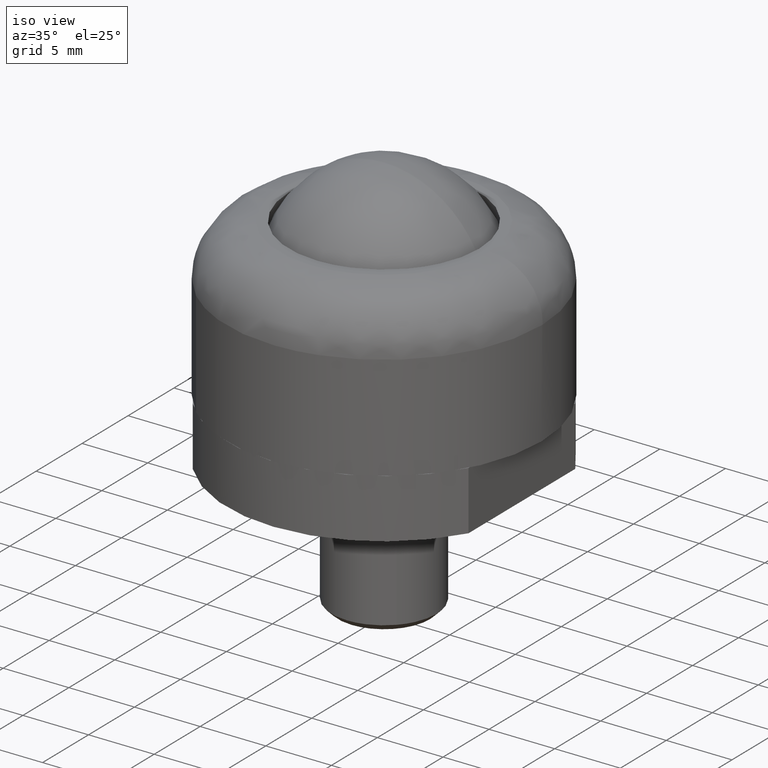
[diagram: clean part render]
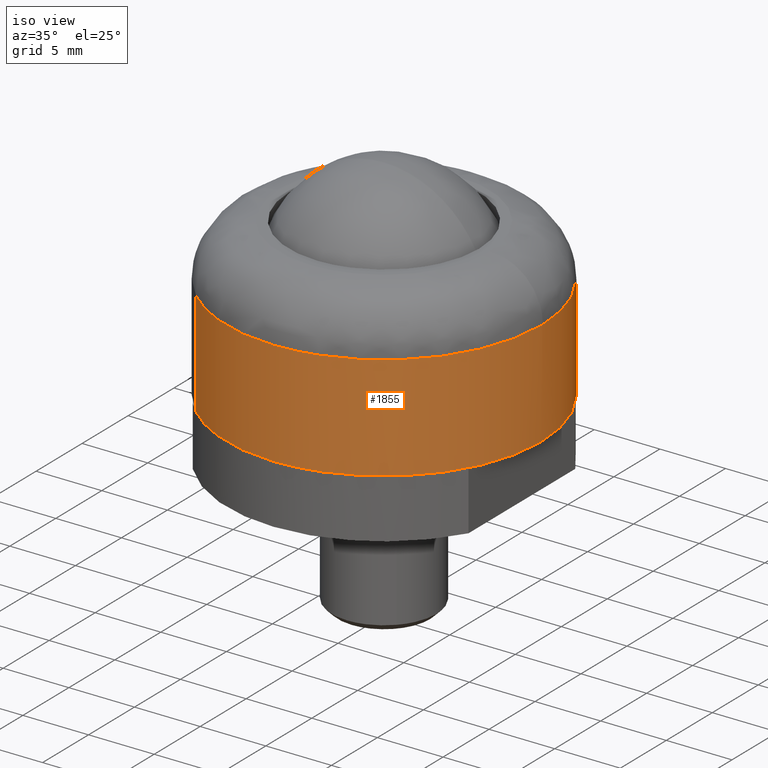
[diagram: tour spotlight — one face highlighted and labeled with its STEP entity id]
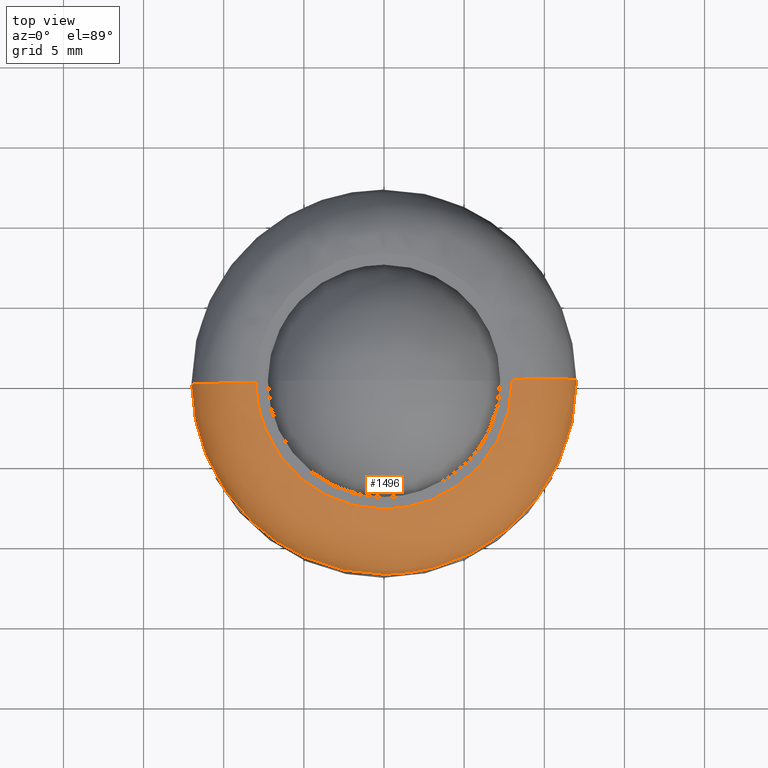
[diagram: tour spotlight — one face highlighted and labeled with its STEP entity id]
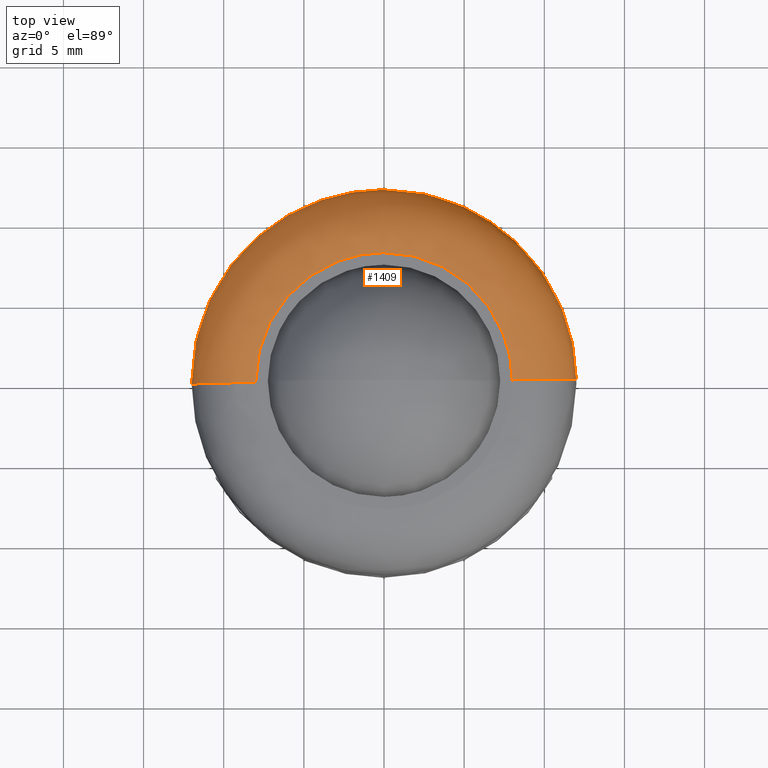
[diagram: tour spotlight — one face highlighted and labeled with its STEP entity id]
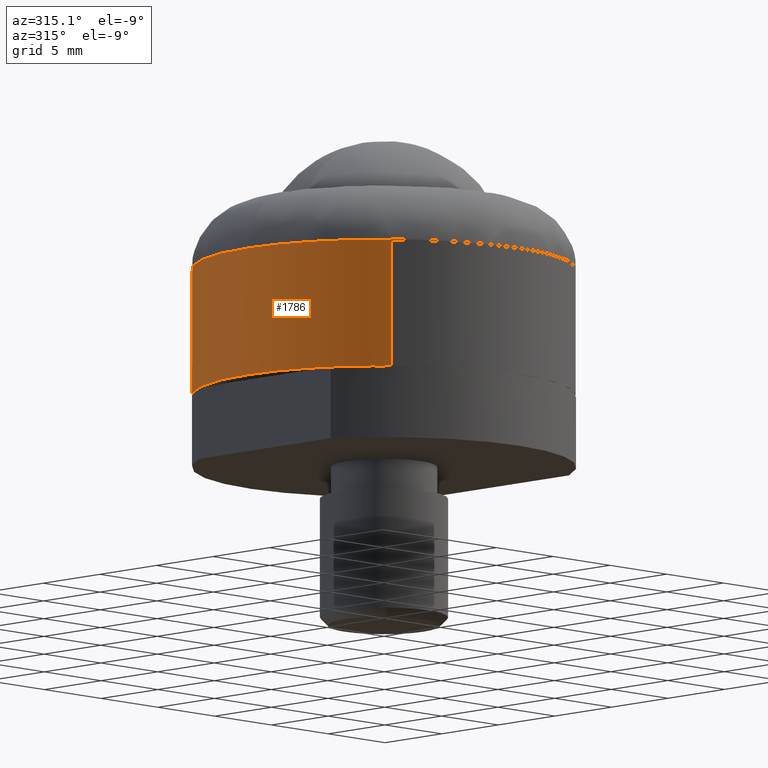
[diagram: tour spotlight — one face highlighted and labeled with its STEP entity id]
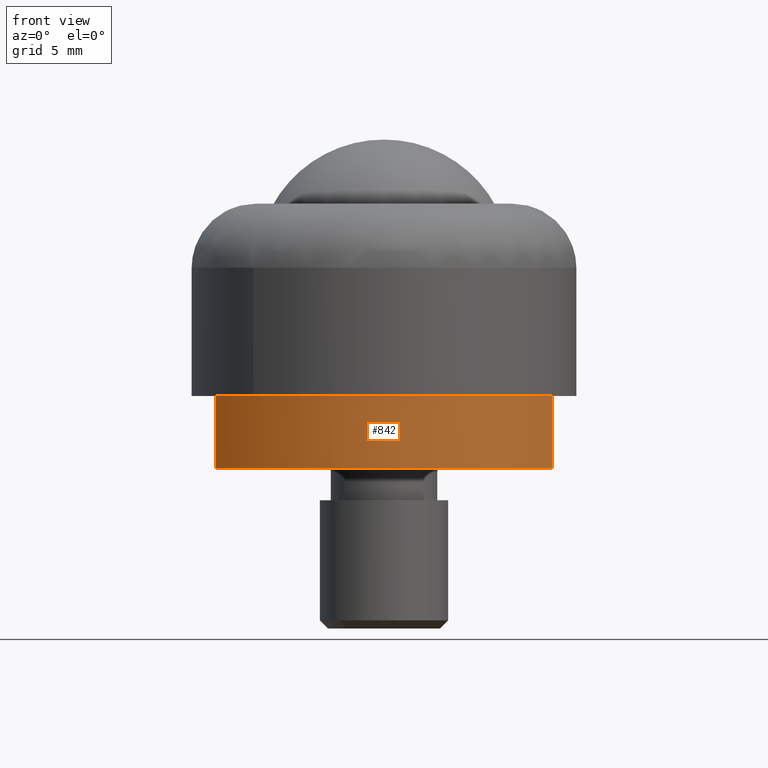
[diagram: tour spotlight — one face highlighted and labeled with its STEP entity id]
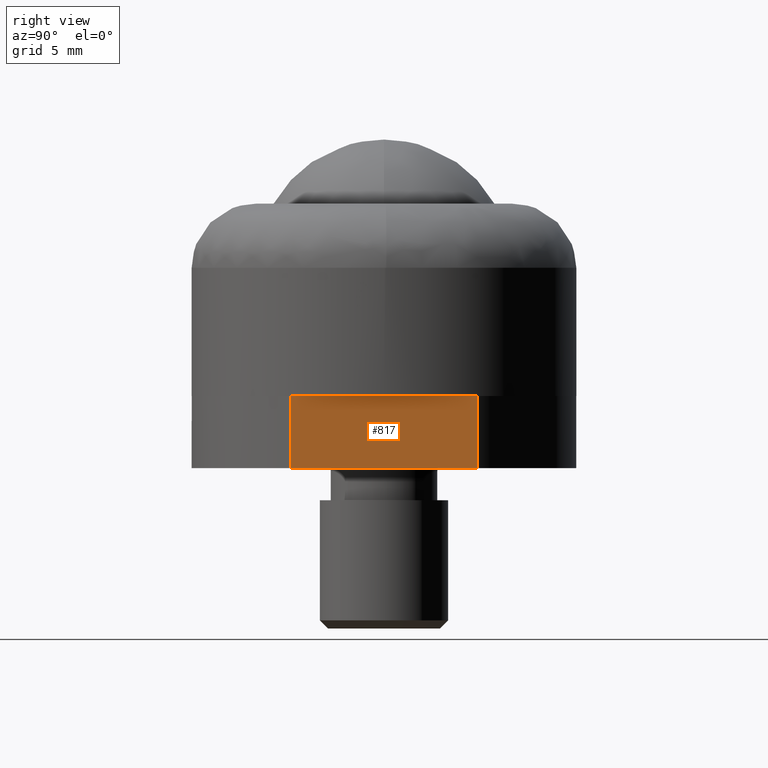
[diagram: tour spotlight — one face highlighted and labeled with its STEP entity id]
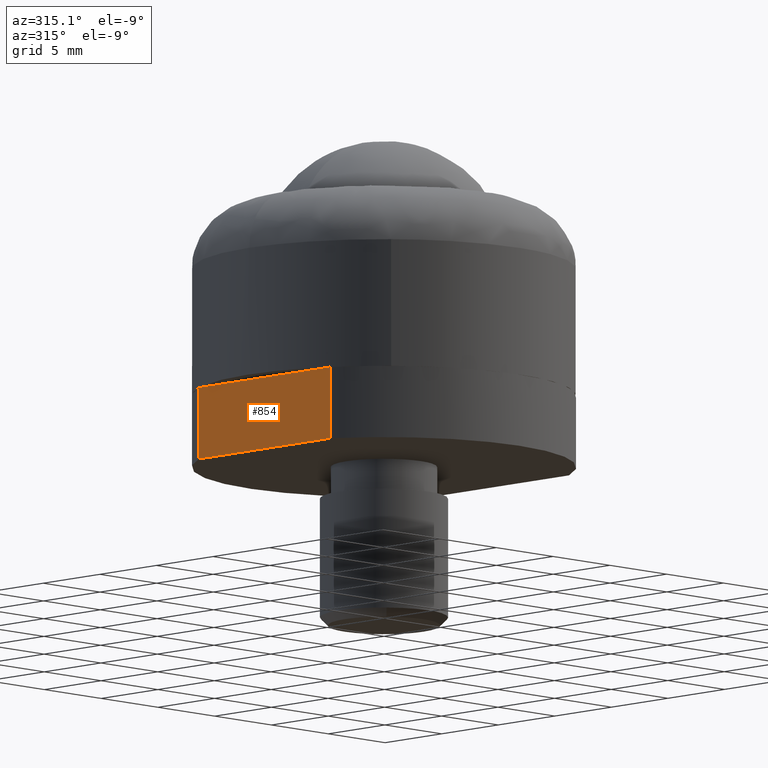
[diagram: tour spotlight — one face highlighted and labeled with its STEP entity id]
A machine part: a face-by-face anatomy tour. The part has 29 B-rep faces; the first image is the clean iso view, then the 7 largest visible faces are spotlighted one at a time (largest first), each with its STEP entity span.

Face 1 — iso view, entity #1855. In plain terms, the highlighted face is a freeform B-spline surface patch.
Definition (entity closure, byte-faithful):
#1344=CARTESIAN_POINT('',(11.999052530445731,0.150792478605389,8.000000000027146));
#1345=VERTEX_POINT('',#1344);
#1361=CARTESIAN_POINT('',(8.150221700225481,8.807603887390350,8.000000000022855));
#1362=VERTEX_POINT('',#1361);
#1363=CARTESIAN_POINT('',(8.150221700225481,8.807603887390350,8.000000000022855));
#1364=CARTESIAN_POINT('',(8.671482128028611,8.325339009844845,8.000000000023453));
#1365=CARTESIAN_POINT('',(9.474229027210596,7.437816710629212,8.000000000024320));
#1366=CARTESIAN_POINT('',(10.416196169492739,6.019854363783121,8.000000000025432));
#1367=CARTESIAN_POINT('',(11.017441017838140,4.814622836116429,8.000000000026040));
#1368=CARTESIAN_POINT('',(11.485054691502249,3.552992729651795,8.000000000026601));
#1369=CARTESIAN_POINT('',(11.869032063066671,2.051427471956650,8.000000000027027));
#1370=CARTESIAN_POINT('',(11.990193050754140,0.860871659160365,8.000000000027097));
#1371=CARTESIAN_POINT('',(11.999052530445731,0.150792478605389,8.000000000027146));
#1372=B_SPLINE_CURVE_WITH_KNOTS('',3,(#1363,#1364,#1365,#1366,#1367,#1368,#1369,#1370,#1371),.UNSPECIFIED.,.F.,.U.,(4,1,1,1,1,1,4),(7.575803E-009,2.130394669935055,3.576027367319011,5.097726640682389,6.162926198179520,7.608558895563734,9.738953557923326),.UNSPECIFIED.);
#1373=EDGE_CURVE('',#1362,#1345,#1372,.T.);
#1439=CARTESIAN_POINT('',(-8.150221700225480,-8.807603887390352,8.000000000022855));
#1440=VERTEX_POINT('',#1439);
#1452=CARTESIAN_POINT('',(0.075388707493014,-11.999763186945930,8.000000000013573));
#1453=VERTEX_POINT('',#1452);
#1454=CARTESIAN_POINT('',(0.075388707493014,-11.999763186945930,8.000000000013573));
#1455=CARTESIAN_POINT('',(-0.654006143706912,-12.004420671418620,8.000000000014389));
#1456=CARTESIAN_POINT('',(-2.090061988687813,-11.882100078422290,8.000000000016041));
#1457=CARTESIAN_POINT('',(-3.959715974021001,-11.376134511166679,8.000000000018083));
#1458=CARTESIAN_POINT('',(-5.578183753002072,-10.664351549641220,8.000000000019991));
#1459=CARTESIAN_POINT('',(-6.928254911870231,-9.842816120790843,8.000000000021464));
#1460=CARTESIAN_POINT('',(-7.770299474572687,-9.159189611917725,8.000000000022439));
#1461=CARTESIAN_POINT('',(-8.150221700225480,-8.807603887390352,8.000000000022855));
#1462=B_SPLINE_CURVE_WITH_KNOTS('',3,(#1454,#1455,#1456,#1457,#1458,#1459,#1460,#1461),.UNSPECIFIED.,.F.,.U.,(4,1,1,1,1,4),(6.516924E-009,2.188218474336869,4.305852175168417,5.788186343362224,7.482296806935814,9.035224458819268),.UNSPECIFIED.);
#1463=EDGE_CURVE('',#1453,#1440,#1462,.T.);
#1465=CARTESIAN_POINT('',(12.0,0.0,8.0));
#1466=VERTEX_POINT('',#1465);
#1467=CARTESIAN_POINT('',(12.0,0.0,8.0));
#1468=CARTESIAN_POINT('',(12.000011407299761,-0.464460527943945,7.999999999999996));
#1469=CARTESIAN_POINT('',(11.944574154417831,-1.417829200938180,8.000000000000075));
#1470=CARTESIAN_POINT('',(11.646717356755239,-3.081269613846734,8.000000000000437));
#1471=CARTESIAN_POINT('',(11.010339249505590,-4.939191326549644,8.000000000001135));
#1472=CARTESIAN_POINT('',(10.021730813442479,-6.692677011159688,8.000000000002276));
#1473=CARTESIAN_POINT('',(8.984140381373127,-7.996191150020853,8.000000000003505));
#1474=CARTESIAN_POINT('',(7.890624607577387,-9.083254134527977,8.000000000004560));
#1475=CARTESIAN_POINT('',(6.687158894716961,-10.011801255502739,8.000000000006482));
#1476=CARTESIAN_POINT('',(5.409165312356457,-10.737705629668360,8.000000000007132));
#1477=CARTESIAN_POINT('',(4.129871356913888,-11.293162639923990,8.000000000009255));
#1478=CARTESIAN_POINT('',(2.421013081692573,-11.821149636838200,8.000000000010548));
#1479=CARTESIAN_POINT('',(0.979871315033733,-11.994268001263301,8.000000000012932));
#1480=CARTESIAN_POINT('',(0.075388707493014,-11.999763186945930,8.000000000013573));
#1481=B_SPLINE_CURVE_WITH_KNOTS('',3,(#1467,#1468,#1469,#1470,#1471,#1472,#1473,#1474,#1475,#1476,#1477,#1478,#1479,#1480),.UNSPECIFIED.,.F.,.U.,(4,1,1,1,1,1,1,1,1,1,1,4),(0.000000026535375,1.393382668926854,2.860122857525321,5.060234315766738,7.260335007608569,8.873749474419734,10.047110052082751,11.880536035670460,13.420614786120391,14.447330572144489,16.060747338141759,18.774195934235760),.UNSPECIFIED.);
#1482=EDGE_CURVE('',#1466,#1453,#1481,.T.);
#1484=CARTESIAN_POINT('',(11.999052530445731,0.150792478605389,8.000000000027146));
#1485=CARTESIAN_POINT('',(12.0,0.0,8.0));
#1486=QUASI_UNIFORM_CURVE('',1,(#1484,#1485),.UNSPECIFIED.,.F.,.U.);
#1487=EDGE_CURVE('',#1345,#1466,#1486,.T.);
#1727=CARTESIAN_POINT('',(8.150221724179847,8.807603865223889,1.942890E-016));
#1728=VERTEX_POINT('',#1727);
#1729=CARTESIAN_POINT('',(8.150221700225481,8.807603887390350,8.000000000022855));
#1730=CARTESIAN_POINT('',(8.150221724179847,8.807603865223889,1.942890E-016));
#1731=QUASI_UNIFORM_CURVE('',1,(#1729,#1730),.UNSPECIFIED.,.F.,.U.);
#1732=EDGE_CURVE('',#1362,#1728,#1731,.T.);
#1766=CARTESIAN_POINT('',(-8.150221724179847,-8.807603865223891,1.942890E-016));
#1767=VERTEX_POINT('',#1766);
#1779=CARTESIAN_POINT('',(-8.150221700225480,-8.807603887390352,8.000000000022855));
#1780=CARTESIAN_POINT('',(-8.150221724179847,-8.807603865223891,1.942890E-016));
#1781=QUASI_UNIFORM_CURVE('',1,(#1779,#1780),.UNSPECIFIED.,.F.,.U.);
#1782=EDGE_CURVE('',#1440,#1767,#1781,.T.);
#1787=CARTESIAN_POINT('',(8.150221714000264,8.807603874643686,8.200000000027826));
#1788=CARTESIAN_POINT('',(16.957825588643956,0.657382160643422,8.200000000027826));
#1789=CARTESIAN_POINT('',(8.807603874643686,-8.150221714000264,8.200000000027826));
#1790=CARTESIAN_POINT('',(0.657382160643422,-16.957825588643956,8.200000000027826));
#1791=CARTESIAN_POINT('',(-8.150221714000264,-8.807603874643686,8.200000000027826));
#1792=CARTESIAN_POINT('',(8.150221714000264,8.807603874643686,-0.205000000000696));
#1793=CARTESIAN_POINT('',(16.957825588643956,0.657382160643422,-0.205000000000696));
#1794=CARTESIAN_POINT('',(8.807603874643686,-8.150221714000264,-0.205000000000696));
#1795=CARTESIAN_POINT('',(0.657382160643422,-16.957825588643956,-0.205000000000696));
#1796=CARTESIAN_POINT('',(-8.150221714000264,-8.807603874643686,-0.205000000000696));
#1804=(BOUNDED_SURFACE()B_SPLINE_SURFACE(2,1,((#1787,#1792),(#1788,#1793),(#1789,#1794),(#1790,#1795),(#1791,#1796)),.UNSPECIFIED.,.F.,.F.,.U.)B_SPLINE_SURFACE_WITH_KNOTS((3,2,3),(2,2),(0.0,19.882250993908560,39.764501987817113),(0.0,8.405000000028522),.UNSPECIFIED.)GEOMETRIC_REPRESENTATION_ITEM()RATIONAL_B_SPLINE_SURFACE(((1.0,1.0),(0.707106781186548,0.707106781186548),(1.0,1.0),(0.707106781186548,0.707106781186548),(1.0,1.0)))REPRESENTATION_ITEM('')SURFACE());
#1805=ORIENTED_EDGE('',*,*,#1463,.T.);
#1806=ORIENTED_EDGE('',*,*,#1782,.T.);
#1807=CARTESIAN_POINT('',(0.0,-12.0,0.0));
#1808=VERTEX_POINT('',#1807);
#1809=CARTESIAN_POINT('',(0.0,-12.0,0.0));
#1810=CARTESIAN_POINT('',(-0.699986530723798,-12.000048687467100,1.668663E-017));
#1811=CARTESIAN_POINT('',(-2.169956736284453,-11.871060751411260,5.172851E-017));
#1812=CARTESIAN_POINT('',(-3.931507148013010,-11.381205203783070,9.372122E-017));
#1813=CARTESIAN_POINT('',(-5.387223708976368,-10.746255450045441,1.284233E-016));
#1814=CARTESIAN_POINT('',(-6.710650589090807,-10.000230601089280,1.599718E-016));
#1815=CARTESIAN_POINT('',(-7.636498571738492,-9.283078268364074,1.820426E-016));
#1816=CARTESIAN_POINT('',(-8.150221724179847,-8.807603865223891,1.942890E-016));
#1817=B_SPLINE_CURVE_WITH_KNOTS('',3,(#1809,#1810,#1811,#1812,#1813,#1814,#1815,#1816),.UNSPECIFIED.,.F.,.U.,(4,1,1,1,1,4),(6.701729E-009,2.099961025915477,4.409927718938732,5.459893613363427,6.859873945475978,8.959834964689954),.UNSPECIFIED.);
#1818=EDGE_CURVE('',#1808,#1767,#1817,.T.);
#1819=ORIENTED_EDGE('',*,*,#1818,.F.);
#1820=CARTESIAN_POINT('',(12.0,0.0,0.0));
#1821=VERTEX_POINT('',#1820);
#1822=CARTESIAN_POINT('',(12.0,0.0,0.0));
#1823=CARTESIAN_POINT('',(12.000118696536729,-0.809947506403297,0.0));
#1824=CARTESIAN_POINT('',(11.857799878374530,-2.208889735110283,0.0));
#1825=CARTESIAN_POINT('',(11.341157066411901,-4.032095999804342,0.0));
#1826=CARTESIAN_POINT('',(10.604195405997430,-5.722720429505489,0.0));
#1827=CARTESIAN_POINT('',(9.649912053248482,-7.219524891285317,0.0));
#1828=CARTESIAN_POINT('',(8.374692443749082,-8.652723455516114,0.0));
#1829=CARTESIAN_POINT('',(6.961738219772919,-9.841678162026874,0.0));
#1830=CARTESIAN_POINT('',(5.222767592192676,-10.869545214201899,0.0));
#1831=CARTESIAN_POINT('',(3.471888160648204,-11.532585088383231,0.0));
#1832=CARTESIAN_POINT('',(1.718047782751911,-11.915095543464240,0.0));
#1833=CARTESIAN_POINT('',(0.613593313000995,-12.000035211830840,0.0));
#1834=CARTESIAN_POINT('',(0.0,-12.0,0.0));
#1835=B_SPLINE_CURVE_WITH_KNOTS('',3,(#1822,#1823,#1824,#1825,#1826,#1827,#1828,#1829,#1830,#1831,#1832,#1833,#1834),.UNSPECIFIED.,.F.,.U.,(4,1,1,1,1,1,1,1,1,1,4),(0.000000027044333,2.429819822833615,4.196976010864429,5.669606577657952,7.952183941740296,9.498407437983197,11.412822423937021,13.474506509912191,15.536185248831950,17.008805841592839,18.849585491021241),.UNSPECIFIED.);
#1836=EDGE_CURVE('',#1821,#1808,#1835,.T.);
#1837=ORIENTED_EDGE('',*,*,#1836,.F.);
#1838=CARTESIAN_POINT('',(8.150221724179847,8.807603865223889,1.942890E-016));
#1839=CARTESIAN_POINT('',(8.698469125836015,8.300390692385957,1.831003E-016));
#1840=CARTESIAN_POINT('',(9.561602847345801,7.337205661104610,1.618532E-016));
#1841=CARTESIAN_POINT('',(10.592122048466679,5.728828400222984,1.263736E-016));
#1842=CARTESIAN_POINT('',(11.326963833398480,4.104988887561123,9.055293E-017));
#1843=CARTESIAN_POINT('',(11.865205340940900,2.163347439063184,4.772180E-017));
#1844=CARTESIAN_POINT('',(12.000092759836020,0.772643339845406,1.704392E-017));
#1845=CARTESIAN_POINT('',(12.0,0.0,0.0));
#1846=B_SPLINE_CURVE_WITH_KNOTS('',3,(#1838,#1839,#1840,#1841,#1842,#1843,#1844,#1845),.UNSPECIFIED.,.F.,.U.,(4,1,1,1,1,4),(7.551140E-009,2.240645708477408,3.863190169631452,5.717504333196771,7.571841136143569,9.889750742216009),.UNSPECIFIED.);
#1847=EDGE_CURVE('',#1728,#1821,#1846,.T.);
#1848=ORIENTED_EDGE('',*,*,#1847,.F.);
#1849=ORIENTED_EDGE('',*,*,#1732,.F.);
#1850=ORIENTED_EDGE('',*,*,#1373,.T.);
#1851=ORIENTED_EDGE('',*,*,#1487,.T.);
#1852=ORIENTED_EDGE('',*,*,#1482,.T.);
#1853=EDGE_LOOP('',(#1805,#1806,#1819,#1837,#1848,#1849,#1850,#1851,#1852));
#1854=FACE_OUTER_BOUND('',#1853,.T.);
#1855=ADVANCED_FACE('',(#1854),#1804,.T.);

Face 2 — top view, entity #1496. In plain terms, the highlighted face is a freeform B-spline surface patch.
Definition (entity closure, byte-faithful):
#1086=CARTESIAN_POINT('',(-7.999368353823391,-0.100528319104922,12.0));
#1087=VERTEX_POINT('',#1086);
#1095=CARTESIAN_POINT('',(0.050258764031957,-7.999842126982739,12.0));
#1096=VERTEX_POINT('',#1095);
#1097=CARTESIAN_POINT('',(0.050258764031957,-7.999842126982739,12.0));
#1098=CARTESIAN_POINT('',(-0.291969692002958,-8.002001624722414,12.0));
#1099=CARTESIAN_POINT('',(-1.009308690898889,-7.960417831828395,12.000000000000011));
#1100=CARTESIAN_POINT('',(-2.147877280366271,-7.738725314529022,11.999999999999950));
#1101=CARTESIAN_POINT('',(-3.240442216491117,-7.345918888468682,12.000000000000160));
#1102=CARTESIAN_POINT('',(-4.291294910956784,-6.782969535053945,11.999999999999790));
#1103=CARTESIAN_POINT('',(-5.319696521452464,-6.029499938841547,12.000000000000171));
#1104=CARTESIAN_POINT('',(-6.237553441284248,-5.072000818602808,12.000000000000030));
#1105=CARTESIAN_POINT('',(-6.895158595428486,-4.096394659710724,11.999999999999940));
#1106=CARTESIAN_POINT('',(-7.376359571363047,-3.151259520485609,12.000000000000190));
#1107=CARTESIAN_POINT('',(-7.680921348950090,-2.305472377029266,11.999999999999950));
#1108=CARTESIAN_POINT('',(-7.926310511984541,-1.240471974038401,12.0));
#1109=CARTESIAN_POINT('',(-7.993671507442953,-0.556807913680777,12.000000000000011));
#1110=CARTESIAN_POINT('',(-7.999368353823391,-0.100528319104922,12.0));
#1111=B_SPLINE_CURVE_WITH_KNOTS('',3,(#1097,#1098,#1099,#1100,#1101,#1102,#1103,#1104,#1105,#1106,#1107,#1108,#1109,#1110),.UNSPECIFIED.,.F.,.U.,(4,1,1,1,1,1,1,1,1,1,1,4),(0.000000032343642,1.026706891044071,2.151201481715830,3.471268425500442,4.497982534330774,5.720274910603725,7.284759213213086,8.458154736016571,9.240414605485842,10.462700141200481,11.147179417200739,12.516118221549579),.UNSPECIFIED.);
#1112=EDGE_CURVE('',#1096,#1087,#1111,.T.);
#1114=CARTESIAN_POINT('',(8.0,0.0,12.0));
#1115=VERTEX_POINT('',#1114);
#1116=CARTESIAN_POINT('',(8.0,0.0,12.0));
#1117=CARTESIAN_POINT('',(8.000007600070280,-0.342235364035424,12.0));
#1118=CARTESIAN_POINT('',(7.952872440890642,-1.075597087077423,12.000000000000011));
#1119=CARTESIAN_POINT('',(7.691091632250863,-2.356401361394689,11.999999999999959));
#1120=CARTESIAN_POINT('',(7.171812730929088,-3.649187877849604,12.000000000000030));
#1121=CARTESIAN_POINT('',(6.450150170503080,-4.778970361939138,11.999999999999959));
#1122=CARTESIAN_POINT('',(5.660638851825850,-5.693878554737453,12.000000000000011));
#1123=CARTESIAN_POINT('',(4.831300056676323,-6.409815986532683,12.000000000000030));
#1124=CARTESIAN_POINT('',(3.897673977444101,-7.010298109555170,11.999999999999940));
#1125=CARTESIAN_POINT('',(2.807380275182842,-7.532101224692839,12.000000000000080));
#1126=CARTESIAN_POINT('',(1.500126976867151,-7.905486006509801,12.0));
#1127=CARTESIAN_POINT('',(0.506562304105791,-7.997003475008324,11.999999999999920));
#1128=CARTESIAN_POINT('',(0.050258764031957,-7.999842126982739,12.0));
#1129=B_SPLINE_CURVE_WITH_KNOTS('',3,(#1116,#1117,#1118,#1119,#1120,#1121,#1122,#1123,#1124,#1125,#1126,#1127,#1128),.UNSPECIFIED.,.F.,.U.,(4,1,1,1,1,1,1,1,1,1,4),(0.000000032334984,1.026707938994770,2.200099898308638,3.911291691568414,5.182463448415021,6.209194250977256,7.529226238229244,8.458163369469572,9.533772472657008,11.147190795456609,12.516130997089990),.UNSPECIFIED.);
#1130=EDGE_CURVE('',#1115,#1096,#1129,.T.);
#1132=CARTESIAN_POINT('',(7.999368353823392,0.100528319104922,12.0));
#1133=VERTEX_POINT('',#1132);
#1134=CARTESIAN_POINT('',(7.999368353823392,0.100528319104922,12.0));
#1135=CARTESIAN_POINT('',(8.0,0.0,12.0));
#1136=QUASI_UNIFORM_CURVE('',1,(#1134,#1135),.UNSPECIFIED.,.F.,.U.);
#1137=EDGE_CURVE('',#1133,#1115,#1136,.T.);
#1318=CARTESIAN_POINT('',(-11.999052530445731,-0.150792478605392,8.000000000027146));
#1319=VERTEX_POINT('',#1318);
#1327=CARTESIAN_POINT('',(-7.999368353823391,-0.100528319104922,12.0));
#1328=CARTESIAN_POINT('',(-8.342962410215186,-0.104846276647689,12.000095323297501));
#1329=CARTESIAN_POINT('',(-8.866461927407165,-0.111425111894558,11.932102792538100));
#1330=CARTESIAN_POINT('',(-9.658972357540556,-0.121384615924115,11.664874699634479));
#1331=CARTESIAN_POINT('',(-10.263017489297569,-0.128975670495285,11.327558966083330));
#1332=CARTESIAN_POINT('',(-10.802763836428390,-0.135758680174363,10.873283196431361));
#1333=CARTESIAN_POINT('',(-11.226599525818949,-0.141085036894524,10.393947392586419));
#1334=CARTESIAN_POINT('',(-11.600937792874999,-0.145789357917914,9.794707626542314));
#1335=CARTESIAN_POINT('',(-11.914523186428539,-0.149730195627826,8.981686647882516));
#1336=CARTESIAN_POINT('',(-11.999182605205080,-0.150794113260444,8.359987217605760));
#1337=CARTESIAN_POINT('',(-11.999052530445731,-0.150792478605392,8.000000000027146));
#1338=B_SPLINE_CURVE_WITH_KNOTS('',3,(#1327,#1328,#1329,#1330,#1331,#1332,#1333,#1334,#1335,#1336,#1337),.UNSPECIFIED.,.F.,.U.,(4,1,1,1,1,1,1,1,4),(0.000000036555487,1.030836140948819,1.570806485872057,2.503474080192615,3.092534708587933,3.681566731997817,4.417888286750750,5.203301434479204,6.283224731377064),.UNSPECIFIED.);
#1339=EDGE_CURVE('',#1087,#1319,#1338,.T.);
#1344=CARTESIAN_POINT('',(11.999052530445731,0.150792478605389,8.000000000027146));
#1345=VERTEX_POINT('',#1344);
#1346=CARTESIAN_POINT('',(7.999368353823392,0.100528319104922,12.0));
#1347=CARTESIAN_POINT('',(8.277510969532894,0.104023746290363,12.000044917984530));
#1348=CARTESIAN_POINT('',(8.768326056357909,0.110191835251063,11.948577411442750));
#1349=CARTESIAN_POINT('',(9.507906629107483,0.119486168062976,11.729181560388890));
#1350=CARTESIAN_POINT('',(10.211035851882849,0.128322415588427,11.369845856622080));
#1351=CARTESIAN_POINT('',(10.834535867003771,0.136157960303049,10.858089575499321));
#1352=CARTESIAN_POINT('',(11.282462506971740,0.141787068772652,10.312173360275970));
#1353=CARTESIAN_POINT('',(11.591197006470070,0.145666945142273,9.789803113783098));
#1354=CARTESIAN_POINT('',(11.804655773551250,0.148349488322418,9.274424473865977));
#1355=CARTESIAN_POINT('',(11.959770431995430,0.150298819214999,8.670847176863019));
#1356=CARTESIAN_POINT('',(11.999080362766790,0.150792828375998,8.245435044323866));
#1357=CARTESIAN_POINT('',(11.999052530445731,0.150792478605389,8.000000000027146));
#1358=B_SPLINE_CURVE_WITH_KNOTS('',3,(#1346,#1347,#1348,#1349,#1350,#1351,#1352,#1353,#1354,#1355,#1356,#1357),.UNSPECIFIED.,.F.,.U.,(4,1,1,1,1,1,1,1,1,4),(0.000000036555597,0.834488792738630,1.472629725031909,2.307130195203954,3.190689607629558,3.877916194188229,4.417888286750817,5.006948828580751,5.546920921143375,6.283224731377062),.UNSPECIFIED.);
#1359=EDGE_CURVE('',#1133,#1345,#1358,.T.);
#1410=CARTESIAN_POINT('',(7.718529196598790,0.312893830506306,11.990317465230838));
#1411=CARTESIAN_POINT('',(7.719877661868822,0.205592022347169,11.990317465230833));
#1412=CARTESIAN_POINT('',(7.818275020700975,-7.624208830083408,11.990317465230840));
#1413=CARTESIAN_POINT('',(0.097033095308784,-7.721241925392193,11.990317465230842));
#1414=CARTESIAN_POINT('',(-7.624208830083408,-7.818275020700975,11.990317465230840));
#1415=CARTESIAN_POINT('',(-7.722606188915330,0.011525831710936,11.990317465230836));
#1416=CARTESIAN_POINT('',(-7.723954654185133,0.118827639851837,11.990317465230838));
#1417=CARTESIAN_POINT('',(12.304852055977502,0.498814242395399,12.310148516315829));
#1418=CARTESIAN_POINT('',(12.307001774560895,0.327754077808749,12.310148516315831));
#1419=CARTESIAN_POINT('',(12.463866497397222,-12.154486859930985,12.310148516315826));
#1420=CARTESIAN_POINT('',(0.154689818733118,-12.309176678664105,12.310148516315829));
#1421=CARTESIAN_POINT('',(-12.154486859930980,-12.463866497397222,12.310148516315826));
#1422=CARTESIAN_POINT('',(-12.311351582766944,0.018374440312754,12.310148516315831));
#1423=CARTESIAN_POINT('',(-12.313501301349969,0.189434604870335,12.310148516315831));
#1424=CARTESIAN_POINT('',(11.985158488189128,0.485854500653719,7.721851499298784));
#1425=CARTESIAN_POINT('',(11.987252354723219,0.319238666976079,7.721851499298785));
#1426=CARTESIAN_POINT('',(12.140041559814554,-11.838699945044787,7.721851499298786));
#1427=CARTESIAN_POINT('',(0.150670807384883,-11.989370752429672,7.721851499298785));
#1428=CARTESIAN_POINT('',(-11.838699945044787,-12.140041559814554,7.721851499298786));
#1429=CARTESIAN_POINT('',(-11.991489150135759,0.017897052177328,7.721851499298785));
#1430=CARTESIAN_POINT('',(-11.993583016669495,0.184512885826654,7.721851499298785));
#1438=(BOUNDED_SURFACE()B_SPLINE_SURFACE(2,2,((#1410,#1417,#1424),(#1411,#1418,#1425),(#1412,#1419,#1426),(#1413,#1420,#1427),(#1414,#1421,#1428),(#1415,#1422,#1429),(#1416,#1423,#1430)),.UNSPECIFIED.,.F.,.F.,.U.)B_SPLINE_SURFACE_WITH_KNOTS((3,1,2,1,3),(3,3),(0.0,0.397324168707364,20.263532600914040,40.129741033120723,40.527065201759363),(0.0,7.290919857939078),.UNSPECIFIED.)GEOMETRIC_REPRESENTATION_ITEM()RATIONAL_B_SPLINE_SURFACE(((0.927077710675016,0.608371547716606,0.927077722427978),(0.921709902957975,0.604849058230494,0.921709914642887),(0.647951709431553,0.425202094466791,0.647951717645915),(0.916342095240933,0.601326568744382,0.916342106857795),(0.647951709431553,0.425202094466791,0.647951717645915),(0.921709902957046,0.604849058229885,0.921709914641958),(0.927077710673160,0.608371547715388,0.927077722426122)))REPRESENTATION_ITEM('')SURFACE());
#1439=CARTESIAN_POINT('',(-8.150221700225480,-8.807603887390352,8.000000000022855));
#1440=VERTEX_POINT('',#1439);
#1441=CARTESIAN_POINT('',(-8.150221700225480,-8.807603887390352,8.000000000022855));
#1442=CARTESIAN_POINT('',(-8.578379779996796,-8.411440632024158,8.000000000023343));
#1443=CARTESIAN_POINT('',(-9.394105583839245,-7.537916424459702,8.000000000024254));
#1444=CARTESIAN_POINT('',(-10.474806048300019,-5.965906358288535,8.000000000025466));
#1445=CARTESIAN_POINT('',(-11.305226527894799,-4.189889297667122,8.000000000026397));
#1446=CARTESIAN_POINT('',(-11.853572055725881,-2.203413464478429,8.000000000026962));
#1447=CARTESIAN_POINT('',(-11.990199537386211,-0.860872667996124,8.000000000027201));
#1448=CARTESIAN_POINT('',(-11.999052530445731,-0.150792478605392,8.000000000027146));
#1449=B_SPLINE_CURVE_WITH_KNOTS('',3,(#1441,#1442,#1443,#1444,#1445,#1446,#1447,#1448),.UNSPECIFIED.,.F.,.U.,(4,1,1,1,1,4),(7.575011E-009,1.749967132319986,3.576027367318932,5.706415258213126,7.608558895563769,9.738953557923329),.UNSPECIFIED.);
#1450=EDGE_CURVE('',#1440,#1319,#1449,.T.);
#1451=ORIENTED_EDGE('',*,*,#1450,.F.);
#1452=CARTESIAN_POINT('',(0.075388707493014,-11.999763186945930,8.000000000013573));
#1453=VERTEX_POINT('',#1452);
#1454=CARTESIAN_POINT('',(0.075388707493014,-11.999763186945930,8.000000000013573));
#1455=CARTESIAN_POINT('',(-0.654006143706912,-12.004420671418620,8.000000000014389));
#1456=CARTESIAN_POINT('',(-2.090061988687813,-11.882100078422290,8.000000000016041));
#1457=CARTESIAN_POINT('',(-3.959715974021001,-11.376134511166679,8.000000000018083));
#1458=CARTESIAN_POINT('',(-5.578183753002072,-10.664351549641220,8.000000000019991));
#1459=CARTESIAN_POINT('',(-6.928254911870231,-9.842816120790843,8.000000000021464));
#1460=CARTESIAN_POINT('',(-7.770299474572687,-9.159189611917725,8.000000000022439));
#1461=CARTESIAN_POINT('',(-8.150221700225480,-8.807603887390352,8.000000000022855));
#1462=B_SPLINE_CURVE_WITH_KNOTS('',3,(#1454,#1455,#1456,#1457,#1458,#1459,#1460,#1461),.UNSPECIFIED.,.F.,.U.,(4,1,1,1,1,4),(6.516924E-009,2.188218474336869,4.305852175168417,5.788186343362224,7.482296806935814,9.035224458819268),.UNSPECIFIED.);
#1463=EDGE_CURVE('',#1453,#1440,#1462,.T.);
#1464=ORIENTED_EDGE('',*,*,#1463,.F.);
#1465=CARTESIAN_POINT('',(12.0,0.0,8.0));
#1466=VERTEX_POINT('',#1465);
#1467=CARTESIAN_POINT('',(12.0,0.0,8.0));
#1468=CARTESIAN_POINT('',(12.000011407299761,-0.464460527943945,7.999999999999996));
#1469=CARTESIAN_POINT('',(11.944574154417831,-1.417829200938180,8.000000000000075));
#1470=CARTESIAN_POINT('',(11.646717356755239,-3.081269613846734,8.000000000000437));
#1471=CARTESIAN_POINT('',(11.010339249505590,-4.939191326549644,8.000000000001135));
#1472=CARTESIAN_POINT('',(10.021730813442479,-6.692677011159688,8.000000000002276));
#1473=CARTESIAN_POINT('',(8.984140381373127,-7.996191150020853,8.000000000003505));
#1474=CARTESIAN_POINT('',(7.890624607577387,-9.083254134527977,8.000000000004560));
#1475=CARTESIAN_POINT('',(6.687158894716961,-10.011801255502739,8.000000000006482));
#1476=CARTESIAN_POINT('',(5.409165312356457,-10.737705629668360,8.000000000007132));
#1477=CARTESIAN_POINT('',(4.129871356913888,-11.293162639923990,8.000000000009255));
#1478=CARTESIAN_POINT('',(2.421013081692573,-11.821149636838200,8.000000000010548));
#1479=CARTESIAN_POINT('',(0.979871315033733,-11.994268001263301,8.000000000012932));
#1480=CARTESIAN_POINT('',(0.075388707493014,-11.999763186945930,8.000000000013573));
#1481=B_SPLINE_CURVE_WITH_KNOTS('',3,(#1467,#1468,#1469,#1470,#1471,#1472,#1473,#1474,#1475,#1476,#1477,#1478,#1479,#1480),.UNSPECIFIED.,.F.,.U.,(4,1,1,1,1,1,1,1,1,1,1,4),(0.000000026535375,1.393382668926854,2.860122857525321,5.060234315766738,7.260335007608569,8.873749474419734,10.047110052082751,11.880536035670460,13.420614786120391,14.447330572144489,16.060747338141759,18.774195934235760),.UNSPECIFIED.);
#1482=EDGE_CURVE('',#1466,#1453,#1481,.T.);
#1483=ORIENTED_EDGE('',*,*,#1482,.F.);
#1484=CARTESIAN_POINT('',(11.999052530445731,0.150792478605389,8.000000000027146));
#1485=CARTESIAN_POINT('',(12.0,0.0,8.0));
#1486=QUASI_UNIFORM_CURVE('',1,(#1484,#1485),.UNSPECIFIED.,.F.,.U.);
#1487=EDGE_CURVE('',#1345,#1466,#1486,.T.);
#1488=ORIENTED_EDGE('',*,*,#1487,.F.);
#1489=ORIENTED_EDGE('',*,*,#1359,.F.);
#1490=ORIENTED_EDGE('',*,*,#1137,.T.);
#1491=ORIENTED_EDGE('',*,*,#1130,.T.);
#1492=ORIENTED_EDGE('',*,*,#1112,.T.);
#1493=ORIENTED_EDGE('',*,*,#1339,.T.);
#1494=EDGE_LOOP('',(#1451,#1464,#1483,#1488,#1489,#1490,#1491,#1492,#1493));
#1495=FACE_OUTER_BOUND('',#1494,.T.);
#1496=ADVANCED_FACE('',(#1495),#1438,.T.);

Face 3 — top view, entity #1409. In plain terms, the highlighted face is a freeform B-spline surface patch.
Definition (entity closure, byte-faithful):
#1086=CARTESIAN_POINT('',(-7.999368353823391,-0.100528319104922,12.0));
#1087=VERTEX_POINT('',#1086);
#1088=CARTESIAN_POINT('',(-8.0,0.0,12.0));
#1089=VERTEX_POINT('',#1088);
#1090=CARTESIAN_POINT('',(-7.999368353823391,-0.100528319104922,12.0));
#1091=CARTESIAN_POINT('',(-8.0,0.0,12.0));
#1092=QUASI_UNIFORM_CURVE('',1,(#1090,#1091),.UNSPECIFIED.,.F.,.U.);
#1093=EDGE_CURVE('',#1087,#1089,#1092,.T.);
#1132=CARTESIAN_POINT('',(7.999368353823392,0.100528319104922,12.0));
#1133=VERTEX_POINT('',#1132);
#1139=CARTESIAN_POINT('',(-0.050258764031964,7.999842126982737,12.0));
#1140=VERTEX_POINT('',#1139);
#1141=CARTESIAN_POINT('',(-0.050258764031964,7.999842126982737,12.0));
#1142=CARTESIAN_POINT('',(0.357154555699040,8.002425290386762,12.0));
#1143=CARTESIAN_POINT('',(1.090851420045500,7.950863696749345,12.000000000000030));
#1144=CARTESIAN_POINT('',(2.193254485296868,7.718645646165750,11.999999999999950));
#1145=CARTESIAN_POINT('',(3.301651557130126,7.324017649611078,12.000000000000020));
#1146=CARTESIAN_POINT('',(4.334626259802317,6.758405271722078,12.000000000000020));
#1147=CARTESIAN_POINT('',(5.194013578447635,6.108249226758629,11.999999999999950));
#1148=CARTESIAN_POINT('',(5.889519008455503,5.442226217680688,12.000000000000190));
#1149=CARTESIAN_POINT('',(6.542729858068612,4.647374056209345,11.999999999999700));
#1150=CARTESIAN_POINT('',(7.055495811261968,3.811693877314252,12.000000000000419));
#1151=CARTESIAN_POINT('',(7.512364852848422,2.818696375205685,11.999999999999799));
#1152=CARTESIAN_POINT('',(7.879499771843939,1.631033684879788,12.000000000000050));
#1153=CARTESIAN_POINT('',(7.992684656732818,0.638291297467462,12.000000000000011));
#1154=CARTESIAN_POINT('',(7.999368353823392,0.100528319104922,12.0));
#1155=B_SPLINE_CURVE_WITH_KNOTS('',3,(#1141,#1142,#1143,#1144,#1145,#1146,#1147,#1148,#1149,#1150,#1151,#1152,#1153,#1154),.UNSPECIFIED.,.F.,.U.,(4,1,1,1,1,1,1,1,1,1,1,4),(0.000000032343547,1.222264099490792,2.200097652612874,3.373486496186814,4.742442092765367,5.720274910603560,6.600287859702536,7.626997929572654,8.800393520929191,9.533762741287321,10.902720535676361,12.516118221549579),.UNSPECIFIED.);
#1156=EDGE_CURVE('',#1140,#1133,#1155,.T.);
#1158=CARTESIAN_POINT('',(-8.0,0.0,12.0));
#1159=CARTESIAN_POINT('',(-8.000167200685498,0.635601386879480,11.999999999999989));
#1160=CARTESIAN_POINT('',(-7.886714080959502,1.580739554100270,12.0));
#1161=CARTESIAN_POINT('',(-7.471901536628736,2.939060136856544,12.000000000000011));
#1162=CARTESIAN_POINT('',(-6.966866089063655,4.003301260853619,11.999999999999989));
#1163=CARTESIAN_POINT('',(-6.214015192261872,5.091953772995347,12.000000000000121));
#1164=CARTESIAN_POINT('',(-5.240968754148267,6.107805106585851,11.999999999999890));
#1165=CARTESIAN_POINT('',(-4.051930029535929,6.952053254056494,12.000000000000080));
#1166=CARTESIAN_POINT('',(-2.833614687808865,7.512222829160316,11.999999999999989));
#1167=CARTESIAN_POINT('',(-1.532599358545238,7.892485861523683,11.999999999999989));
#1168=CARTESIAN_POINT('',(-0.620650114664465,7.996350830415198,12.000000000000050));
#1169=CARTESIAN_POINT('',(-0.050258764031964,7.999842126982737,12.0));
#1170=B_SPLINE_CURVE_WITH_KNOTS('',3,(#1158,#1159,#1160,#1161,#1162,#1163,#1164,#1165,#1166,#1167,#1168,#1169),.UNSPECIFIED.,.F.,.U.,(4,1,1,1,1,1,1,1,1,4),(0.000000032333086,1.906745798771464,2.835684065853055,4.253530672808795,5.426918181791498,6.795850172900959,8.458163369469622,9.778230117088448,10.804950981445961,12.516130997089990),.UNSPECIFIED.);
#1171=EDGE_CURVE('',#1089,#1140,#1170,.T.);
#1289=CARTESIAN_POINT('',(-7.718529196598790,-0.312893830506297,11.990317465230843));
#1290=CARTESIAN_POINT('',(-7.719877661868822,-0.205592022347165,11.990317465230836));
#1291=CARTESIAN_POINT('',(-7.818275020700975,7.624208830083408,11.990317465230840));
#1292=CARTESIAN_POINT('',(-0.097033095308785,7.721241925392193,11.990317465230842));
#1293=CARTESIAN_POINT('',(7.624208830083405,7.818275020700975,11.990317465230840));
#1294=CARTESIAN_POINT('',(7.722606188915330,-0.011525831710937,11.990317465230834));
#1295=CARTESIAN_POINT('',(7.723954654185134,-0.118827639851841,11.990317465230836));
#1296=CARTESIAN_POINT('',(-12.304852055977502,-0.498814242395385,12.310148516315831));
#1297=CARTESIAN_POINT('',(-12.307001774560893,-0.327754077808742,12.310148516315829));
#1298=CARTESIAN_POINT('',(-12.463866497397222,12.154486859930980,12.310148516315826));
#1299=CARTESIAN_POINT('',(-0.154689818733120,12.309176678664105,12.310148516315829));
#1300=CARTESIAN_POINT('',(12.154486859930980,12.463866497397225,12.310148516315826));
#1301=CARTESIAN_POINT('',(12.311351582766942,-0.018374440312757,12.310148516315829));
#1302=CARTESIAN_POINT('',(12.313501301349968,-0.189434604870340,12.310148516315829));
#1303=CARTESIAN_POINT('',(-11.985158488189134,-0.485854500653706,7.721851499298784));
#1304=CARTESIAN_POINT('',(-11.987252354723221,-0.319238666976073,7.721851499298785));
#1305=CARTESIAN_POINT('',(-12.140041559814556,11.838699945044786,7.721851499298786));
#1306=CARTESIAN_POINT('',(-0.150670807384885,11.989370752429672,7.721851499298785));
#1307=CARTESIAN_POINT('',(11.838699945044786,12.140041559814556,7.721851499298786));
#1308=CARTESIAN_POINT('',(11.991489150135758,-0.017897052177330,7.721851499298784));
#1309=CARTESIAN_POINT('',(11.993583016669493,-0.184512885826659,7.721851499298785));
#1317=(BOUNDED_SURFACE()B_SPLINE_SURFACE(2,2,((#1289,#1296,#1303),(#1290,#1297,#1304),(#1291,#1298,#1305),(#1292,#1299,#1306),(#1293,#1300,#1307),(#1294,#1301,#1308),(#1295,#1302,#1309)),.UNSPECIFIED.,.F.,.F.,.U.)B_SPLINE_SURFACE_WITH_KNOTS((3,1,2,1,3),(3,3),(0.0,0.397324168707346,20.263532600914029,40.129741033120709,40.527065201759363),(0.0,7.290919857939080),.UNSPECIFIED.)GEOMETRIC_REPRESENTATION_ITEM()RATIONAL_B_SPLINE_SURFACE(((0.927077710675016,0.608371547716606,0.927077722427978),(0.921709902957974,0.604849058230494,0.921709914642886),(0.647951709431553,0.425202094466791,0.647951717645915),(0.916342095240933,0.601326568744382,0.916342106857795),(0.647951709431553,0.425202094466791,0.647951717645915),(0.921709902957046,0.604849058229885,0.921709914641958),(0.927077710673160,0.608371547715388,0.927077722426122)))REPRESENTATION_ITEM('')SURFACE());
#1318=CARTESIAN_POINT('',(-11.999052530445731,-0.150792478605392,8.000000000027146));
#1319=VERTEX_POINT('',#1318);
#1320=CARTESIAN_POINT('',(-12.0,0.0,8.0));
#1321=VERTEX_POINT('',#1320);
#1322=CARTESIAN_POINT('',(-11.999052530445731,-0.150792478605392,8.000000000027146));
#1323=CARTESIAN_POINT('',(-12.0,0.0,8.0));
#1324=QUASI_UNIFORM_CURVE('',1,(#1322,#1323),.UNSPECIFIED.,.F.,.U.);
#1325=EDGE_CURVE('',#1319,#1321,#1324,.T.);
#1326=ORIENTED_EDGE('',*,*,#1325,.F.);
#1327=CARTESIAN_POINT('',(-7.999368353823391,-0.100528319104922,12.0));
#1328=CARTESIAN_POINT('',(-8.342962410215186,-0.104846276647689,12.000095323297501));
#1329=CARTESIAN_POINT('',(-8.866461927407165,-0.111425111894558,11.932102792538100));
#1330=CARTESIAN_POINT('',(-9.658972357540556,-0.121384615924115,11.664874699634479));
#1331=CARTESIAN_POINT('',(-10.263017489297569,-0.128975670495285,11.327558966083330));
#1332=CARTESIAN_POINT('',(-10.802763836428390,-0.135758680174363,10.873283196431361));
#1333=CARTESIAN_POINT('',(-11.226599525818949,-0.141085036894524,10.393947392586419));
#1334=CARTESIAN_POINT('',(-11.600937792874999,-0.145789357917914,9.794707626542314));
#1335=CARTESIAN_POINT('',(-11.914523186428539,-0.149730195627826,8.981686647882516));
#1336=CARTESIAN_POINT('',(-11.999182605205080,-0.150794113260444,8.359987217605760));
#1337=CARTESIAN_POINT('',(-11.999052530445731,-0.150792478605392,8.000000000027146));
#1338=B_SPLINE_CURVE_WITH_KNOTS('',3,(#1327,#1328,#1329,#1330,#1331,#1332,#1333,#1334,#1335,#1336,#1337),.UNSPECIFIED.,.F.,.U.,(4,1,1,1,1,1,1,1,4),(0.000000036555487,1.030836140948819,1.570806485872057,2.503474080192615,3.092534708587933,3.681566731997817,4.417888286750750,5.203301434479204,6.283224731377064),.UNSPECIFIED.);
#1339=EDGE_CURVE('',#1087,#1319,#1338,.T.);
#1340=ORIENTED_EDGE('',*,*,#1339,.F.);
#1341=ORIENTED_EDGE('',*,*,#1093,.T.);
#1342=ORIENTED_EDGE('',*,*,#1171,.T.);
#1343=ORIENTED_EDGE('',*,*,#1156,.T.);
#1344=CARTESIAN_POINT('',(11.999052530445731,0.150792478605389,8.000000000027146));
#1345=VERTEX_POINT('',#1344);
#1346=CARTESIAN_POINT('',(7.999368353823392,0.100528319104922,12.0));
#1347=CARTESIAN_POINT('',(8.277510969532894,0.104023746290363,12.000044917984530));
#1348=CARTESIAN_POINT('',(8.768326056357909,0.110191835251063,11.948577411442750));
#1349=CARTESIAN_POINT('',(9.507906629107483,0.119486168062976,11.729181560388890));
#1350=CARTESIAN_POINT('',(10.211035851882849,0.128322415588427,11.369845856622080));
#1351=CARTESIAN_POINT('',(10.834535867003771,0.136157960303049,10.858089575499321));
#1352=CARTESIAN_POINT('',(11.282462506971740,0.141787068772652,10.312173360275970));
#1353=CARTESIAN_POINT('',(11.591197006470070,0.145666945142273,9.789803113783098));
#1354=CARTESIAN_POINT('',(11.804655773551250,0.148349488322418,9.274424473865977));
#1355=CARTESIAN_POINT('',(11.959770431995430,0.150298819214999,8.670847176863019));
#1356=CARTESIAN_POINT('',(11.999080362766790,0.150792828375998,8.245435044323866));
#1357=CARTESIAN_POINT('',(11.999052530445731,0.150792478605389,8.000000000027146));
#1358=B_SPLINE_CURVE_WITH_KNOTS('',3,(#1346,#1347,#1348,#1349,#1350,#1351,#1352,#1353,#1354,#1355,#1356,#1357),.UNSPECIFIED.,.F.,.U.,(4,1,1,1,1,1,1,1,1,4),(0.000000036555597,0.834488792738630,1.472629725031909,2.307130195203954,3.190689607629558,3.877916194188229,4.417888286750817,5.006948828580751,5.546920921143375,6.283224731377062),.UNSPECIFIED.);
#1359=EDGE_CURVE('',#1133,#1345,#1358,.T.);
#1360=ORIENTED_EDGE('',*,*,#1359,.T.);
#1361=CARTESIAN_POINT('',(8.150221700225481,8.807603887390350,8.000000000022855));
#1362=VERTEX_POINT('',#1361);
#1363=CARTESIAN_POINT('',(8.150221700225481,8.807603887390350,8.000000000022855));
#1364=CARTESIAN_POINT('',(8.671482128028611,8.325339009844845,8.000000000023453));
#1365=CARTESIAN_POINT('',(9.474229027210596,7.437816710629212,8.000000000024320));
#1366=CARTESIAN_POINT('',(10.416196169492739,6.019854363783121,8.000000000025432));
#1367=CARTESIAN_POINT('',(11.017441017838140,4.814622836116429,8.000000000026040));
#1368=CARTESIAN_POINT('',(11.485054691502249,3.552992729651795,8.000000000026601));
#1369=CARTESIAN_POINT('',(11.869032063066671,2.051427471956650,8.000000000027027));
#1370=CARTESIAN_POINT('',(11.990193050754140,0.860871659160365,8.000000000027097));
#1371=CARTESIAN_POINT('',(11.999052530445731,0.150792478605389,8.000000000027146));
#1372=B_SPLINE_CURVE_WITH_KNOTS('',3,(#1363,#1364,#1365,#1366,#1367,#1368,#1369,#1370,#1371),.UNSPECIFIED.,.F.,.U.,(4,1,1,1,1,1,4),(7.575803E-009,2.130394669935055,3.576027367319011,5.097726640682389,6.162926198179520,7.608558895563734,9.738953557923326),.UNSPECIFIED.);
#1373=EDGE_CURVE('',#1362,#1345,#1372,.T.);
#1374=ORIENTED_EDGE('',*,*,#1373,.F.);
#1375=CARTESIAN_POINT('',(-0.075388707493044,11.999763186945920,8.000000000013573));
#1376=VERTEX_POINT('',#1375);
#1377=CARTESIAN_POINT('',(-0.075388707493044,11.999763186945920,8.000000000013573));
#1378=CARTESIAN_POINT('',(0.348127710345825,12.002429368937060,8.000000000014047));
#1379=CARTESIAN_POINT('',(1.313128499009836,11.957376247372190,8.000000000015165));
#1380=CARTESIAN_POINT('',(2.661859843299792,11.729681165751289,8.000000000016632));
#1381=CARTESIAN_POINT('',(4.199286824885390,11.279453770721741,8.000000000018462));
#1382=CARTESIAN_POINT('',(5.623808848415954,10.648024772628631,8.000000000020009));
#1383=CARTESIAN_POINT('',(7.020722059105460,9.769519028805457,8.000000000021576));
#1384=CARTESIAN_POINT('',(7.787568779287367,9.143207872837591,8.000000000022455));
#1385=CARTESIAN_POINT('',(8.150221700225481,8.807603887390350,8.000000000022855));
#1386=B_SPLINE_CURVE_WITH_KNOTS('',3,(#1377,#1378,#1379,#1380,#1381,#1382,#1383,#1384,#1385),.UNSPECIFIED.,.F.,.U.,(4,1,1,1,1,1,4),(6.516332E-009,1.270576775814052,2.894095806680897,4.094090907676208,6.070539888063653,7.552886488552058,9.035224458819297),.UNSPECIFIED.);
#1387=EDGE_CURVE('',#1376,#1362,#1386,.T.);
#1388=ORIENTED_EDGE('',*,*,#1387,.F.);
#1389=CARTESIAN_POINT('',(-12.0,0.0,8.0));
#1390=CARTESIAN_POINT('',(-12.000009260858530,0.464460204405709,8.000000000000005));
#1391=CARTESIAN_POINT('',(-11.944572596965591,1.417826667836444,8.000000000000080));
#1392=CARTESIAN_POINT('',(-11.638110239935740,3.129501341833313,8.000000000000403));
#1393=CARTESIAN_POINT('',(-11.046680373847000,4.822210751964862,8.000000000001215));
#1394=CARTESIAN_POINT('',(-10.133813795974049,6.500737906534538,8.000000000001952));
#1395=CARTESIAN_POINT('',(-9.256949054189553,7.681823475907752,8.000000000003460));
#1396=CARTESIAN_POINT('',(-8.146985553448602,8.854783925646730,8.000000000004196));
#1397=CARTESIAN_POINT('',(-6.952930107979228,9.835709894539175,8.000000000005800));
#1398=CARTESIAN_POINT('',(-5.606329969594095,10.639126768514510,8.000000000007324));
#1399=CARTESIAN_POINT('',(-4.290918452295830,11.234340437326701,8.000000000008834));
#1400=CARTESIAN_POINT('',(-3.055003669616667,11.632755846372570,8.000000000010084));
#1401=CARTESIAN_POINT('',(-1.590547279722469,11.923107860300600,8.000000000012113));
#1402=CARTESIAN_POINT('',(-0.637622129356292,11.996259626383839,8.000000000012630));
#1403=CARTESIAN_POINT('',(-0.075388707493044,11.999763186945920,8.000000000013573));
#1404=B_SPLINE_CURVE_WITH_KNOTS('',3,(#1389,#1390,#1391,#1392,#1393,#1394,#1395,#1396,#1397,#1398,#1399,#1400,#1401,#1402,#1403),.UNSPECIFIED.,.F.,.U.,(4,1,1,1,1,1,1,1,1,1,1,1,4),(0.000000026536494,1.393382668927732,2.860122857525916,5.206906711165384,6.746977978006006,8.580397266309603,9.607096089073265,11.587187422606620,13.200605355507490,14.300658046126930,15.914067236545970,17.087465519300231,18.774195934235710),.UNSPECIFIED.);
#1405=EDGE_CURVE('',#1321,#1376,#1404,.T.);
#1406=ORIENTED_EDGE('',*,*,#1405,.F.);
#1407=EDGE_LOOP('',(#1326,#1340,#1341,#1342,#1343,#1360,#1374,#1388,#1406));
#1408=FACE_OUTER_BOUND('',#1407,.T.);
#1409=ADVANCED_FACE('',(#1408),#1317,.T.);

Face 4 — auxiliary view, entity #1786. In plain terms, the highlighted face is a freeform B-spline surface patch.
Definition (entity closure, byte-faithful):
#1318=CARTESIAN_POINT('',(-11.999052530445731,-0.150792478605392,8.000000000027146));
#1319=VERTEX_POINT('',#1318);
#1320=CARTESIAN_POINT('',(-12.0,0.0,8.0));
#1321=VERTEX_POINT('',#1320);
#1322=CARTESIAN_POINT('',(-11.999052530445731,-0.150792478605392,8.000000000027146));
#1323=CARTESIAN_POINT('',(-12.0,0.0,8.0));
#1324=QUASI_UNIFORM_CURVE('',1,(#1322,#1323),.UNSPECIFIED.,.F.,.U.);
#1325=EDGE_CURVE('',#1319,#1321,#1324,.T.);
#1361=CARTESIAN_POINT('',(8.150221700225481,8.807603887390350,8.000000000022855));
#1362=VERTEX_POINT('',#1361);
#1375=CARTESIAN_POINT('',(-0.075388707493044,11.999763186945920,8.000000000013573));
#1376=VERTEX_POINT('',#1375);
#1377=CARTESIAN_POINT('',(-0.075388707493044,11.999763186945920,8.000000000013573));
#1378=CARTESIAN_POINT('',(0.348127710345825,12.002429368937060,8.000000000014047));
#1379=CARTESIAN_POINT('',(1.313128499009836,11.957376247372190,8.000000000015165));
#1380=CARTESIAN_POINT('',(2.661859843299792,11.729681165751289,8.000000000016632));
#1381=CARTESIAN_POINT('',(4.199286824885390,11.279453770721741,8.000000000018462));
#1382=CARTESIAN_POINT('',(5.623808848415954,10.648024772628631,8.000000000020009));
#1383=CARTESIAN_POINT('',(7.020722059105460,9.769519028805457,8.000000000021576));
#1384=CARTESIAN_POINT('',(7.787568779287367,9.143207872837591,8.000000000022455));
#1385=CARTESIAN_POINT('',(8.150221700225481,8.807603887390350,8.000000000022855));
#1386=B_SPLINE_CURVE_WITH_KNOTS('',3,(#1377,#1378,#1379,#1380,#1381,#1382,#1383,#1384,#1385),.UNSPECIFIED.,.F.,.U.,(4,1,1,1,1,1,4),(6.516332E-009,1.270576775814052,2.894095806680897,4.094090907676208,6.070539888063653,7.552886488552058,9.035224458819297),.UNSPECIFIED.);
#1387=EDGE_CURVE('',#1376,#1362,#1386,.T.);
#1389=CARTESIAN_POINT('',(-12.0,0.0,8.0));
#1390=CARTESIAN_POINT('',(-12.000009260858530,0.464460204405709,8.000000000000005));
#1391=CARTESIAN_POINT('',(-11.944572596965591,1.417826667836444,8.000000000000080));
#1392=CARTESIAN_POINT('',(-11.638110239935740,3.129501341833313,8.000000000000403));
#1393=CARTESIAN_POINT('',(-11.046680373847000,4.822210751964862,8.000000000001215));
#1394=CARTESIAN_POINT('',(-10.133813795974049,6.500737906534538,8.000000000001952));
#1395=CARTESIAN_POINT('',(-9.256949054189553,7.681823475907752,8.000000000003460));
#1396=CARTESIAN_POINT('',(-8.146985553448602,8.854783925646730,8.000000000004196));
#1397=CARTESIAN_POINT('',(-6.952930107979228,9.835709894539175,8.000000000005800));
#1398=CARTESIAN_POINT('',(-5.606329969594095,10.639126768514510,8.000000000007324));
#1399=CARTESIAN_POINT('',(-4.290918452295830,11.234340437326701,8.000000000008834));
#1400=CARTESIAN_POINT('',(-3.055003669616667,11.632755846372570,8.000000000010084));
#1401=CARTESIAN_POINT('',(-1.590547279722469,11.923107860300600,8.000000000012113));
#1402=CARTESIAN_POINT('',(-0.637622129356292,11.996259626383839,8.000000000012630));
#1403=CARTESIAN_POINT('',(-0.075388707493044,11.999763186945920,8.000000000013573));
#1404=B_SPLINE_CURVE_WITH_KNOTS('',3,(#1389,#1390,#1391,#1392,#1393,#1394,#1395,#1396,#1397,#1398,#1399,#1400,#1401,#1402,#1403),.UNSPECIFIED.,.F.,.U.,(4,1,1,1,1,1,1,1,1,1,1,1,4),(0.000000026536494,1.393382668927732,2.860122857525916,5.206906711165384,6.746977978006006,8.580397266309603,9.607096089073265,11.587187422606620,13.200605355507490,14.300658046126930,15.914067236545970,17.087465519300231,18.774195934235710),.UNSPECIFIED.);
#1405=EDGE_CURVE('',#1321,#1376,#1404,.T.);
#1439=CARTESIAN_POINT('',(-8.150221700225480,-8.807603887390352,8.000000000022855));
#1440=VERTEX_POINT('',#1439);
#1441=CARTESIAN_POINT('',(-8.150221700225480,-8.807603887390352,8.000000000022855));
#1442=CARTESIAN_POINT('',(-8.578379779996796,-8.411440632024158,8.000000000023343));
#1443=CARTESIAN_POINT('',(-9.394105583839245,-7.537916424459702,8.000000000024254));
#1444=CARTESIAN_POINT('',(-10.474806048300019,-5.965906358288535,8.000000000025466));
#1445=CARTESIAN_POINT('',(-11.305226527894799,-4.189889297667122,8.000000000026397));
#1446=CARTESIAN_POINT('',(-11.853572055725881,-2.203413464478429,8.000000000026962));
#1447=CARTESIAN_POINT('',(-11.990199537386211,-0.860872667996124,8.000000000027201));
#1448=CARTESIAN_POINT('',(-11.999052530445731,-0.150792478605392,8.000000000027146));
#1449=B_SPLINE_CURVE_WITH_KNOTS('',3,(#1441,#1442,#1443,#1444,#1445,#1446,#1447,#1448),.UNSPECIFIED.,.F.,.U.,(4,1,1,1,1,4),(7.575011E-009,1.749967132319986,3.576027367318932,5.706415258213126,7.608558895563769,9.738953557923329),.UNSPECIFIED.);
#1450=EDGE_CURVE('',#1440,#1319,#1449,.T.);
#1705=CARTESIAN_POINT('',(-8.150221714000264,-8.807603874643686,8.200000000027826));
#1706=CARTESIAN_POINT('',(-16.957825588643956,-0.657382160643422,8.200000000027826));
#1707=CARTESIAN_POINT('',(-8.807603874643686,8.150221714000264,8.200000000027826));
#1708=CARTESIAN_POINT('',(-0.657382160643422,16.957825588643956,8.200000000027826));
#1709=CARTESIAN_POINT('',(8.150221714000264,8.807603874643686,8.200000000027826));
#1710=CARTESIAN_POINT('',(-8.150221714000264,-8.807603874643686,-0.205000000000696));
#1711=CARTESIAN_POINT('',(-16.957825588643956,-0.657382160643422,-0.205000000000696));
#1712=CARTESIAN_POINT('',(-8.807603874643686,8.150221714000264,-0.205000000000696));
#1713=CARTESIAN_POINT('',(-0.657382160643422,16.957825588643956,-0.205000000000696));
#1714=CARTESIAN_POINT('',(8.150221714000264,8.807603874643686,-0.205000000000696));
#1722=(BOUNDED_SURFACE()B_SPLINE_SURFACE(2,1,((#1705,#1710),(#1706,#1711),(#1707,#1712),(#1708,#1713),(#1709,#1714)),.UNSPECIFIED.,.F.,.F.,.U.)B_SPLINE_SURFACE_WITH_KNOTS((3,2,3),(2,2),(0.0,19.882250993908560,39.764501987817113),(0.0,8.405000000028522),.UNSPECIFIED.)GEOMETRIC_REPRESENTATION_ITEM()RATIONAL_B_SPLINE_SURFACE(((1.0,1.0),(0.707106781186548,0.707106781186548),(1.0,1.0),(0.707106781186548,0.707106781186548),(1.0,1.0)))REPRESENTATION_ITEM('')SURFACE());
#1723=ORIENTED_EDGE('',*,*,#1450,.T.);
#1724=ORIENTED_EDGE('',*,*,#1325,.T.);
#1725=ORIENTED_EDGE('',*,*,#1405,.T.);
#1726=ORIENTED_EDGE('',*,*,#1387,.T.);
#1727=CARTESIAN_POINT('',(8.150221724179847,8.807603865223889,1.942890E-016));
#1728=VERTEX_POINT('',#1727);
#1729=CARTESIAN_POINT('',(8.150221700225481,8.807603887390350,8.000000000022855));
#1730=CARTESIAN_POINT('',(8.150221724179847,8.807603865223889,1.942890E-016));
#1731=QUASI_UNIFORM_CURVE('',1,(#1729,#1730),.UNSPECIFIED.,.F.,.U.);
#1732=EDGE_CURVE('',#1362,#1728,#1731,.T.);
#1733=ORIENTED_EDGE('',*,*,#1732,.T.);
#1734=CARTESIAN_POINT('',(0.0,12.0,0.0));
#1735=VERTEX_POINT('',#1734);
#1736=CARTESIAN_POINT('',(0.0,12.0,0.0));
#1737=CARTESIAN_POINT('',(0.933336942987618,12.000219975477689,2.224935E-017));
#1738=CARTESIAN_POINT('',(2.449867505960679,11.822118191870549,5.840116E-017));
#1739=CARTESIAN_POINT('',(4.189757739803569,11.271923663639329,9.987752E-017));
#1740=CARTESIAN_POINT('',(5.449290775923415,10.713853885712590,1.299029E-016));
#1741=CARTESIAN_POINT('',(6.730109603075022,9.986911561182316,1.604357E-016));
#1742=CARTESIAN_POINT('',(7.653615067424260,9.267218078450206,1.824507E-016));
#1743=CARTESIAN_POINT('',(8.150221724179847,8.807603865223889,1.942890E-016));
#1744=B_SPLINE_CURVE_WITH_KNOTS('',3,(#1736,#1737,#1738,#1739,#1740,#1741,#1742,#1743),.UNSPECIFIED.,.F.,.U.,(4,1,1,1,1,4),(6.699661E-009,2.799949657633487,4.549907252452186,5.459893613363265,6.929873352139765,8.959834964689954),.UNSPECIFIED.);
#1745=EDGE_CURVE('',#1735,#1728,#1744,.T.);
#1746=ORIENTED_EDGE('',*,*,#1745,.F.);
#1747=CARTESIAN_POINT('',(-12.0,0.0,0.0));
#1748=VERTEX_POINT('',#1747);
#1749=CARTESIAN_POINT('',(-12.0,0.0,0.0));
#1750=CARTESIAN_POINT('',(-12.000195481712399,0.932680823159470,0.0));
#1751=CARTESIAN_POINT('',(-11.836063813371659,2.331570906799064,0.0));
#1752=CARTESIAN_POINT('',(-11.320254605327721,4.050604809932134,0.0));
#1753=CARTESIAN_POINT('',(-10.785865300606700,5.318711633890220,0.0));
#1754=CARTESIAN_POINT('',(-10.038352518863940,6.647798285934304,0.0));
#1755=CARTESIAN_POINT('',(-9.005758995503124,7.996374017370070,0.0));
#1756=CARTESIAN_POINT('',(-7.839973103826151,9.126880883471150,0.0));
#1757=CARTESIAN_POINT('',(-6.464243852656495,10.160378811482991,0.0));
#1758=CARTESIAN_POINT('',(-5.058734762237199,10.928390129340730,0.0));
#1759=CARTESIAN_POINT('',(-3.699277404102513,11.433609930651061,0.0));
#1760=CARTESIAN_POINT('',(-2.110693869432738,11.862835510887860,0.0));
#1761=CARTESIAN_POINT('',(-0.908134965823024,12.000190857499099,0.0));
#1762=CARTESIAN_POINT('',(0.0,12.0,0.0));
#1763=B_SPLINE_CURVE_WITH_KNOTS('',3,(#1749,#1750,#1751,#1752,#1753,#1754,#1755,#1756,#1757,#1758,#1759,#1760,#1761,#1762),.UNSPECIFIED.,.F.,.U.,(4,1,1,1,1,1,1,1,1,1,1,4),(0.000000027040116,2.797982285522338,4.196976010861938,5.375080194839272,6.921342704969337,8.762130115298071,10.455621587723250,11.780989521353710,13.916294552124990,15.241657819669520,16.125240862829639,18.849585491021241),.UNSPECIFIED.);
#1764=EDGE_CURVE('',#1748,#1735,#1763,.T.);
#1765=ORIENTED_EDGE('',*,*,#1764,.F.);
#1766=CARTESIAN_POINT('',(-8.150221724179847,-8.807603865223891,1.942890E-016));
#1767=VERTEX_POINT('',#1766);
#1768=CARTESIAN_POINT('',(-8.150221724179847,-8.807603865223891,1.942890E-016));
#1769=CARTESIAN_POINT('',(-8.698472780227139,-8.300394646141465,1.831004E-016));
#1770=CARTESIAN_POINT('',(-9.561597286295086,-7.337202098774160,1.618531E-016));
#1771=CARTESIAN_POINT('',(-10.675722309521610,-5.598434603661239,1.234972E-016));
#1772=CARTESIAN_POINT('',(-11.400655409396871,-3.910417057628640,8.626082E-017));
#1773=CARTESIAN_POINT('',(-11.888197725878859,-1.957315940751334,4.317690E-017));
#1774=CARTESIAN_POINT('',(-12.000078614080250,-0.721131785087176,1.590762E-017));
#1775=CARTESIAN_POINT('',(-12.0,0.0,0.0));
#1776=B_SPLINE_CURVE_WITH_KNOTS('',3,(#1768,#1769,#1770,#1771,#1772,#1773,#1774,#1775),.UNSPECIFIED.,.F.,.U.,(4,1,1,1,1,4),(7.547426E-009,2.240645708474666,3.863190169629555,6.181093510714415,7.726367829036576,9.889750742216032),.UNSPECIFIED.);
#1777=EDGE_CURVE('',#1767,#1748,#1776,.T.);
#1778=ORIENTED_EDGE('',*,*,#1777,.F.);
#1779=CARTESIAN_POINT('',(-8.150221700225480,-8.807603887390352,8.000000000022855));
#1780=CARTESIAN_POINT('',(-8.150221724179847,-8.807603865223891,1.942890E-016));
#1781=QUASI_UNIFORM_CURVE('',1,(#1779,#1780),.UNSPECIFIED.,.F.,.U.);
#1782=EDGE_CURVE('',#1440,#1767,#1781,.T.);
#1783=ORIENTED_EDGE('',*,*,#1782,.F.);
#1784=EDGE_LOOP('',(#1723,#1724,#1725,#1726,#1733,#1746,#1765,#1778,#1783));
#1785=FACE_OUTER_BOUND('',#1784,.T.);
#1786=ADVANCED_FACE('',(#1785),#1722,.T.);

Face 5 — front view, entity #842. In plain terms, the highlighted face is a freeform B-spline surface patch.
Definition (entity closure, byte-faithful):
#635=CARTESIAN_POINT('',(-10.500000000000000,-5.809475019311289,0.0));
#636=VERTEX_POINT('',#635);
#642=CARTESIAN_POINT('',(10.500000000000000,-5.809475019311119,0.0));
#643=VERTEX_POINT('',#642);
#644=CARTESIAN_POINT('',(10.500000000000000,-5.809475019311119,0.0));
#645=CARTESIAN_POINT('',(10.161557101203289,-6.421294865857537,0.0));
#646=CARTESIAN_POINT('',(9.395963149332411,-7.557780984130879,0.0));
#647=CARTESIAN_POINT('',(8.102415191903974,-8.909552423899051,0.0));
#648=CARTESIAN_POINT('',(6.602254418909098,-10.078028626324601,0.0));
#649=CARTESIAN_POINT('',(4.995354864701096,-10.972137019267031,0.0));
#650=CARTESIAN_POINT('',(3.296327740615308,-11.575506695859200,0.0));
#651=CARTESIAN_POINT('',(1.534203218421157,-11.947637496964560,0.0));
#652=CARTESIAN_POINT('',(-0.168045415969260,-12.046898609670761,0.0));
#653=CARTESIAN_POINT('',(-2.127282019608122,-11.858816092415170,0.0));
#654=CARTESIAN_POINT('',(-3.973944755777110,-11.387853116658411,0.0));
#655=CARTESIAN_POINT('',(-5.739739516226519,-10.589693740758850,0.0));
#656=CARTESIAN_POINT('',(-7.364610633418688,-9.538229724774826,0.0));
#657=CARTESIAN_POINT('',(-9.030225825899796,-8.040285187429667,0.0));
#658=CARTESIAN_POINT('',(-10.032745499966900,-6.654453503772186,0.0));
#659=CARTESIAN_POINT('',(-10.500000000000000,-5.809475019311289,0.0));
#660=B_SPLINE_CURVE_WITH_KNOTS('',3,(#644,#645,#646,#647,#648,#649,#650,#651,#652,#653,#654,#655,#656,#657,#658,#659),.UNSPECIFIED.,.F.,.U.,(4,1,1,1,1,1,1,1,1,1,1,1,1,4),(0.000000011119528,2.097566297521908,4.095270138090189,5.593552242774557,7.791026332537967,9.588958937037161,10.987347641166400,13.184801896976360,14.683074920515169,16.880541123442580,18.878244475593821,20.476409505159850,22.673873807525140,25.570533412326391),.UNSPECIFIED.);
#661=EDGE_CURVE('',#643,#636,#660,.T.);
#701=CARTESIAN_POINT('',(-10.500000000000000,-5.809475019311289,-4.499999999999949));
#702=VERTEX_POINT('',#701);
#733=CARTESIAN_POINT('',(10.500000000000000,-5.809475019311119,-4.499999999999949));
#734=VERTEX_POINT('',#733);
#740=CARTESIAN_POINT('',(10.500000000000000,-5.809475019311119,-4.499999999999949));
#741=CARTESIAN_POINT('',(10.306580080057170,-6.159064642377233,-4.499999999999951));
#742=CARTESIAN_POINT('',(9.796918619544512,-6.980567844483099,-4.499999999999948));
#743=CARTESIAN_POINT('',(8.940684268666471,-8.048116840165527,-4.499999999999941));
#744=CARTESIAN_POINT('',(7.844162444992890,-9.120134974428892,-4.499999999999953));
#745=CARTESIAN_POINT('',(6.651548536913130,-10.033226292389619,-4.499999999999950));
#746=CARTESIAN_POINT('',(5.055282125978362,-10.938904452952491,-4.499999999999949));
#747=CARTESIAN_POINT('',(3.426882042466168,-11.548023384752030,-4.499999999999950));
#748=CARTESIAN_POINT('',(1.925774890005042,-11.864860262984520,-4.499999999999946));
#749=CARTESIAN_POINT('',(0.401856121817463,-12.030494418689241,-4.499999999999958));
#750=CARTESIAN_POINT('',(-1.235911114560167,-11.989575483817740,-4.499999999999936));
#751=CARTESIAN_POINT('',(-3.039611285293274,-11.647714288592450,-4.499999999999973));
#752=CARTESIAN_POINT('',(-4.652540386581641,-11.104931822037310,-4.499999999999936));
#753=CARTESIAN_POINT('',(-6.084205965603507,-10.384644058993221,-4.500000000000120));
#754=CARTESIAN_POINT('',(-7.406086112212381,-9.481631179108350,-4.499999999999814));
#755=CARTESIAN_POINT('',(-8.430875591166439,-8.575232432715371,-4.499999999999969));
#756=CARTESIAN_POINT('',(-9.525167826223411,-7.362902205996499,-4.500000000000088));
#757=CARTESIAN_POINT('',(-10.145450267753970,-6.450440872034873,-4.499999999999696));
#758=CARTESIAN_POINT('',(-10.500000000000000,-5.809475019311289,-4.499999999999949));
#759=B_SPLINE_CURVE_WITH_KNOTS('',3,(#740,#741,#742,#743,#744,#745,#746,#747,#748,#749,#750,#751,#752,#753,#754,#755,#756,#757,#758),.UNSPECIFIED.,.F.,.U.,(4,1,1,1,1,1,1,1,1,1,1,1,1,1,1,1,4),(0.000000011119528,1.198595744234964,2.896659838014369,4.095270138090189,5.793322075740065,7.391482970878876,9.588958937037161,10.987347641166400,11.986199012900769,14.183653664703840,15.881683568720250,17.479853926931991,19.277785618188421,20.676180722390590,22.274335814741370,23.373075697970840,25.570533412326391),.UNSPECIFIED.);
#760=EDGE_CURVE('',#734,#702,#759,.T.);
#808=CARTESIAN_POINT('',(10.500000000000000,-5.809475019311119,-4.499999999999949));
#809=CARTESIAN_POINT('',(10.500000000000000,-5.809475019311119,0.0));
#810=QUASI_UNIFORM_CURVE('',1,(#808,#809),.UNSPECIFIED.,.F.,.U.);
#811=EDGE_CURVE('',#734,#643,#810,.T.);
#818=CARTESIAN_POINT('',(10.735005993270500,-5.362802096334190,-4.612499999999948));
#819=CARTESIAN_POINT('',(10.735005993270500,-5.362802096334190,0.115312499999999));
#820=CARTESIAN_POINT('',(-0.508342414975600,-27.869210197698660,-4.612499999999949));
#821=CARTESIAN_POINT('',(-0.508342414975600,-27.869210197698660,0.115312499999999));
#822=CARTESIAN_POINT('',(-10.923438160866439,-4.967745841498618,-4.612499999999948));
#823=CARTESIAN_POINT('',(-10.923438160866439,-4.967745841498618,0.115312499999999));
#831=(BOUNDED_SURFACE()B_SPLINE_SURFACE(1,2,((#818,#820,#822),(#819,#821,#823)),.UNSPECIFIED.,.F.,.F.,.U.)B_SPLINE_SURFACE_WITH_KNOTS((2,2),(3,3),(0.0,4.727812499999947),(0.0,30.285744546446701),.UNSPECIFIED.)GEOMETRIC_REPRESENTATION_ITEM()RATIONAL_B_SPLINE_SURFACE(((1.0,0.430511096808295,1.0),(1.0,0.430511096808295,1.0)))REPRESENTATION_ITEM('')SURFACE());
#832=ORIENTED_EDGE('',*,*,#661,.T.);
#833=CARTESIAN_POINT('',(-10.500000000000000,-5.809475019311289,-4.499999999999949));
#834=CARTESIAN_POINT('',(-10.500000000000000,-5.809475019311289,0.0));
#835=QUASI_UNIFORM_CURVE('',1,(#833,#834),.UNSPECIFIED.,.F.,.U.);
#836=EDGE_CURVE('',#702,#636,#835,.T.);
#837=ORIENTED_EDGE('',*,*,#836,.F.);
#838=ORIENTED_EDGE('',*,*,#760,.F.);
#839=ORIENTED_EDGE('',*,*,#811,.T.);
#840=EDGE_LOOP('',(#832,#837,#838,#839));
#841=FACE_OUTER_BOUND('',#840,.T.);
#842=ADVANCED_FACE('',(#841),#831,.T.);

Face 6 — right view, entity #817. In plain terms, the highlighted face is a freeform B-spline surface patch.
Definition (entity closure, byte-faithful):
#642=CARTESIAN_POINT('',(10.500000000000000,-5.809475019311119,0.0));
#643=VERTEX_POINT('',#642);
#663=CARTESIAN_POINT('',(10.500000000000000,5.809475019311130,0.0));
#664=VERTEX_POINT('',#663);
#665=CARTESIAN_POINT('',(10.500000000000000,-5.809475019311119,0.0));
#666=CARTESIAN_POINT('',(10.500000000000000,5.809475019311130,0.0));
#667=QUASI_UNIFORM_CURVE('',1,(#665,#666),.UNSPECIFIED.,.F.,.U.);
#668=EDGE_CURVE('',#643,#664,#667,.T.);
#708=CARTESIAN_POINT('',(10.500000000000000,5.809475019311130,-4.499999999999949));
#709=VERTEX_POINT('',#708);
#733=CARTESIAN_POINT('',(10.500000000000000,-5.809475019311119,-4.499999999999949));
#734=VERTEX_POINT('',#733);
#735=CARTESIAN_POINT('',(10.500000000000000,-5.809475019311119,-4.499999999999949));
#736=CARTESIAN_POINT('',(10.500000000000000,5.809475019311130,-4.499999999999949));
#737=QUASI_UNIFORM_CURVE('',1,(#735,#736),.UNSPECIFIED.,.F.,.U.);
#738=EDGE_CURVE('',#734,#709,#737,.T.);
#788=CARTESIAN_POINT('',(10.500000000000000,5.809475019311130,-4.499999999999949));
#789=CARTESIAN_POINT('',(10.500000000000000,5.809475019311130,0.0));
#790=QUASI_UNIFORM_CURVE('',1,(#788,#789),.UNSPECIFIED.,.F.,.U.);
#791=EDGE_CURVE('',#709,#664,#790,.T.);
#802=CARTESIAN_POINT('',(10.500000000000000,-6.389841551220520,0.224774991278124));
#803=CARTESIAN_POINT('',(10.500000000000000,-6.389841551220520,-4.724775111977480));
#804=CARTESIAN_POINT('',(10.500000000000000,6.389841862865056,0.224774991278124));
#805=CARTESIAN_POINT('',(10.500000000000000,6.389841862865056,-4.724775111977480));
#806=B_SPLINE_SURFACE_WITH_KNOTS('',1,1,((#802,#804),(#803,#805)),.UNSPECIFIED.,.F.,.F.,.U.,(2,2),(2,2),(0.0,4.949550103255604),(0.0,12.779683414085580),.UNSPECIFIED.);
#807=ORIENTED_EDGE('',*,*,#668,.F.);
#808=CARTESIAN_POINT('',(10.500000000000000,-5.809475019311119,-4.499999999999949));
#809=CARTESIAN_POINT('',(10.500000000000000,-5.809475019311119,0.0));
#810=QUASI_UNIFORM_CURVE('',1,(#808,#809),.UNSPECIFIED.,.F.,.U.);
#811=EDGE_CURVE('',#734,#643,#810,.T.);
#812=ORIENTED_EDGE('',*,*,#811,.F.);
#813=ORIENTED_EDGE('',*,*,#738,.T.);
#814=ORIENTED_EDGE('',*,*,#791,.T.);
#815=EDGE_LOOP('',(#807,#812,#813,#814));
#816=FACE_OUTER_BOUND('',#815,.T.);
#817=ADVANCED_FACE('',(#816),#806,.T.);

Face 7 — auxiliary view, entity #854. In plain terms, the highlighted face is a freeform B-spline surface patch.
Definition (entity closure, byte-faithful):
#633=CARTESIAN_POINT('',(-10.500000000000000,5.809475019311289,0.0));
#634=VERTEX_POINT('',#633);
#635=CARTESIAN_POINT('',(-10.500000000000000,-5.809475019311289,0.0));
#636=VERTEX_POINT('',#635);
#637=CARTESIAN_POINT('',(-10.500000000000000,5.809475019311289,0.0));
#638=CARTESIAN_POINT('',(-10.500000000000000,-5.809475019311289,0.0));
#639=QUASI_UNIFORM_CURVE('',1,(#637,#638),.UNSPECIFIED.,.F.,.U.);
#640=EDGE_CURVE('',#634,#636,#639,.T.);
#699=CARTESIAN_POINT('',(-10.500000000000000,5.809475019311289,-4.499999999999949));
#700=VERTEX_POINT('',#699);
#701=CARTESIAN_POINT('',(-10.500000000000000,-5.809475019311289,-4.499999999999949));
#702=VERTEX_POINT('',#701);
#703=CARTESIAN_POINT('',(-10.500000000000000,5.809475019311289,-4.499999999999949));
#704=CARTESIAN_POINT('',(-10.500000000000000,-5.809475019311289,-4.499999999999949));
#705=QUASI_UNIFORM_CURVE('',1,(#703,#704),.UNSPECIFIED.,.F.,.U.);
#706=EDGE_CURVE('',#700,#702,#705,.T.);
#794=CARTESIAN_POINT('',(-10.500000000000000,5.809475019311289,-4.499999999999949));
#795=CARTESIAN_POINT('',(-10.500000000000000,5.809475019311289,0.0));
#796=QUASI_UNIFORM_CURVE('',1,(#794,#795),.UNSPECIFIED.,.F.,.U.);
#797=EDGE_CURVE('',#700,#634,#796,.T.);
#833=CARTESIAN_POINT('',(-10.500000000000000,-5.809475019311289,-4.499999999999949));
#834=CARTESIAN_POINT('',(-10.500000000000000,-5.809475019311289,0.0));
#835=QUASI_UNIFORM_CURVE('',1,(#833,#834),.UNSPECIFIED.,.F.,.U.);
#836=EDGE_CURVE('',#702,#636,#835,.T.);
#843=CARTESIAN_POINT('',(-10.500000000000000,-6.389841551220707,-4.724774991278076));
#844=CARTESIAN_POINT('',(-10.500000000000000,-6.389841551220707,0.224775111977530));
#845=CARTESIAN_POINT('',(-10.500000000000000,6.389841862865233,-4.724774991278076));
#846=CARTESIAN_POINT('',(-10.500000000000000,6.389841862865233,0.224775111977530));
#847=B_SPLINE_SURFACE_WITH_KNOTS('',1,1,((#843,#845),(#844,#846)),.UNSPECIFIED.,.F.,.F.,.U.,(2,2),(2,2),(0.0,4.949550103255605),(0.0,12.779683414085939),.UNSPECIFIED.);
#848=ORIENTED_EDGE('',*,*,#640,.F.);
#849=ORIENTED_EDGE('',*,*,#797,.F.);
#850=ORIENTED_EDGE('',*,*,#706,.T.);
#851=ORIENTED_EDGE('',*,*,#836,.T.);
#852=EDGE_LOOP('',(#848,#849,#850,#851));
#853=FACE_OUTER_BOUND('',#852,.T.);
#854=ADVANCED_FACE('',(#853),#847,.T.);